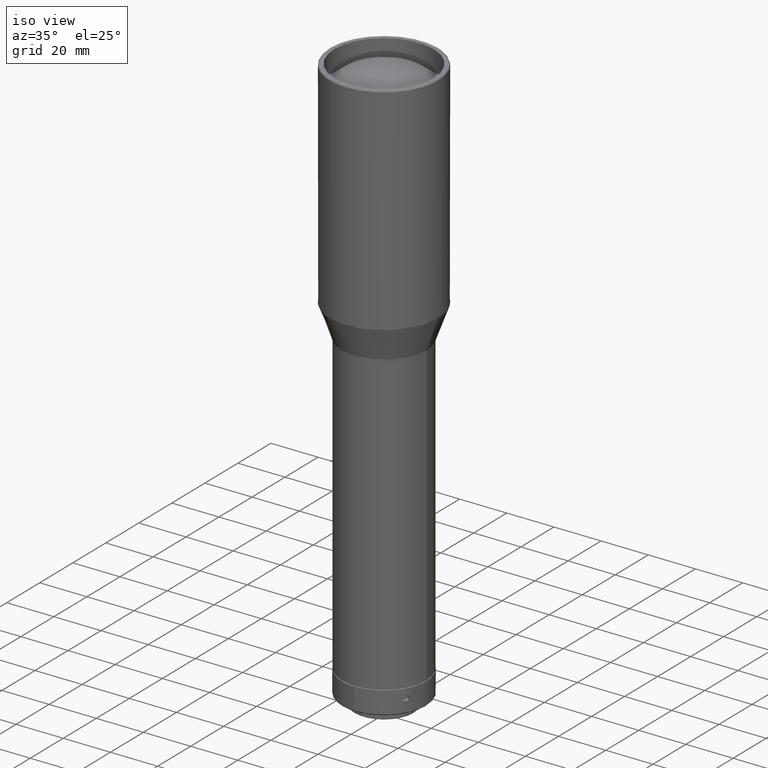
[diagram: clean part render]
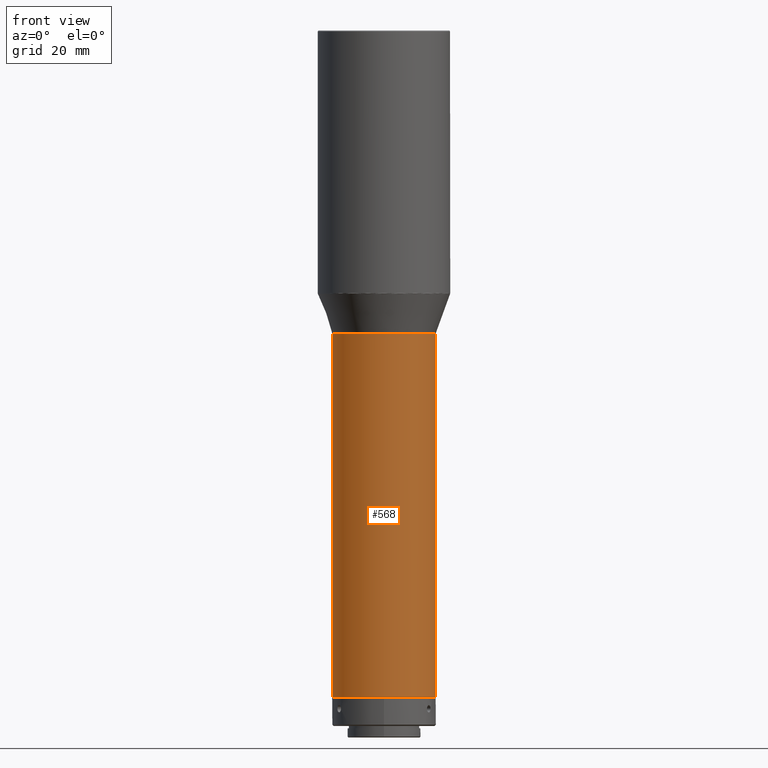
[diagram: tour spotlight — one face highlighted and labeled with its STEP entity id]
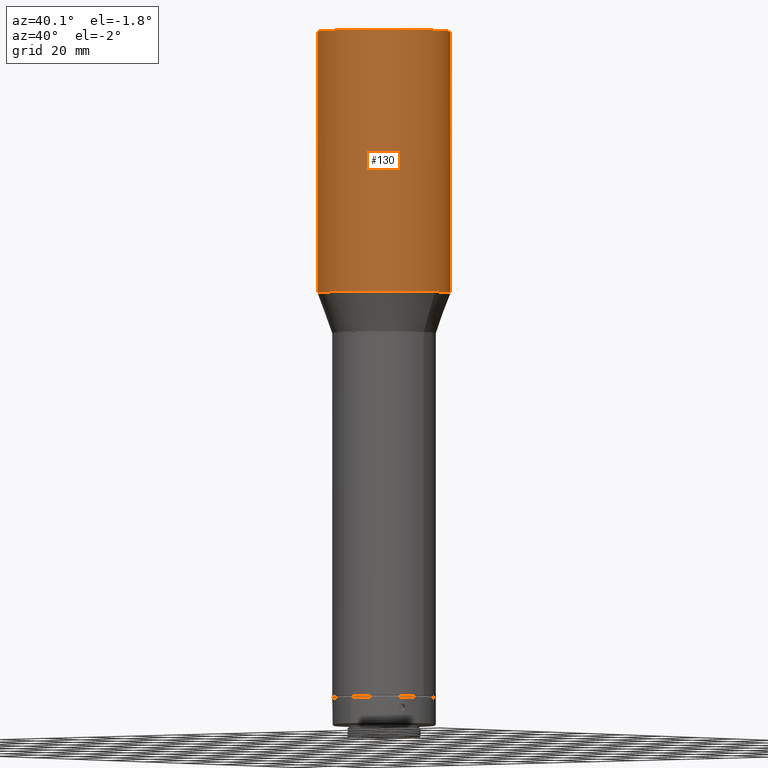
[diagram: tour spotlight — one face highlighted and labeled with its STEP entity id]
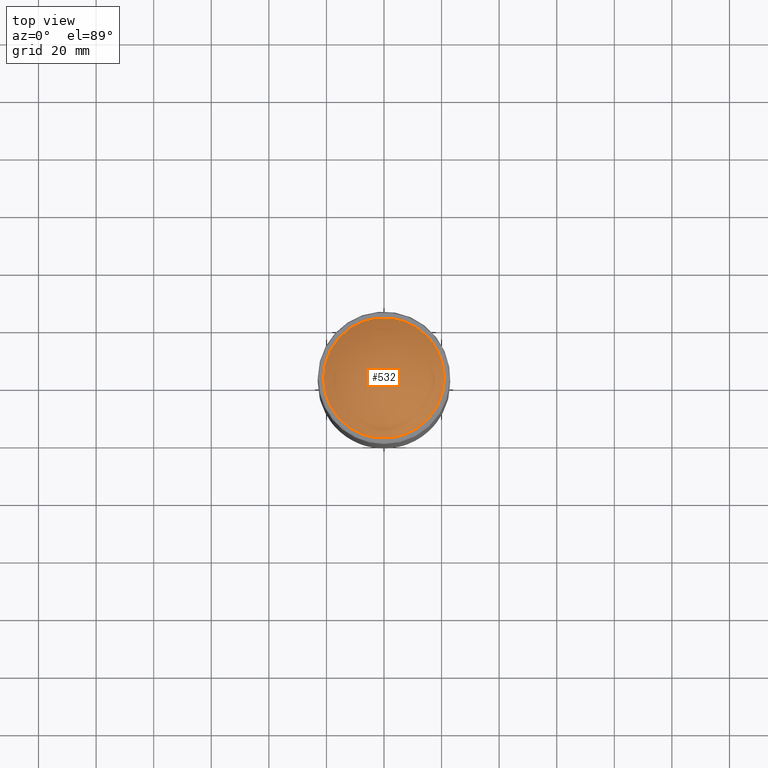
[diagram: tour spotlight — one face highlighted and labeled with its STEP entity id]
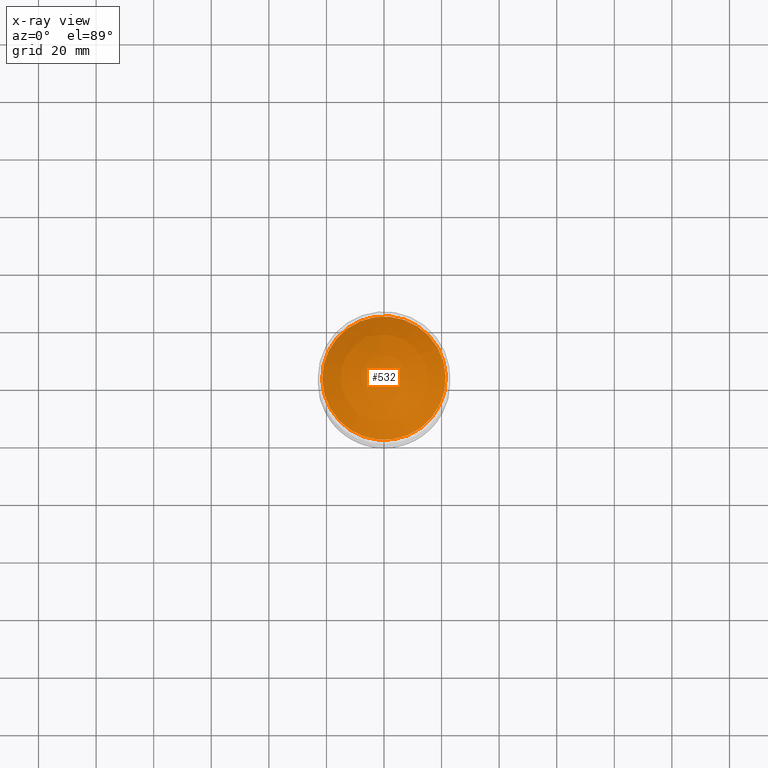
[diagram: x-ray of the same camera — body ghosted, this tour face saturated]
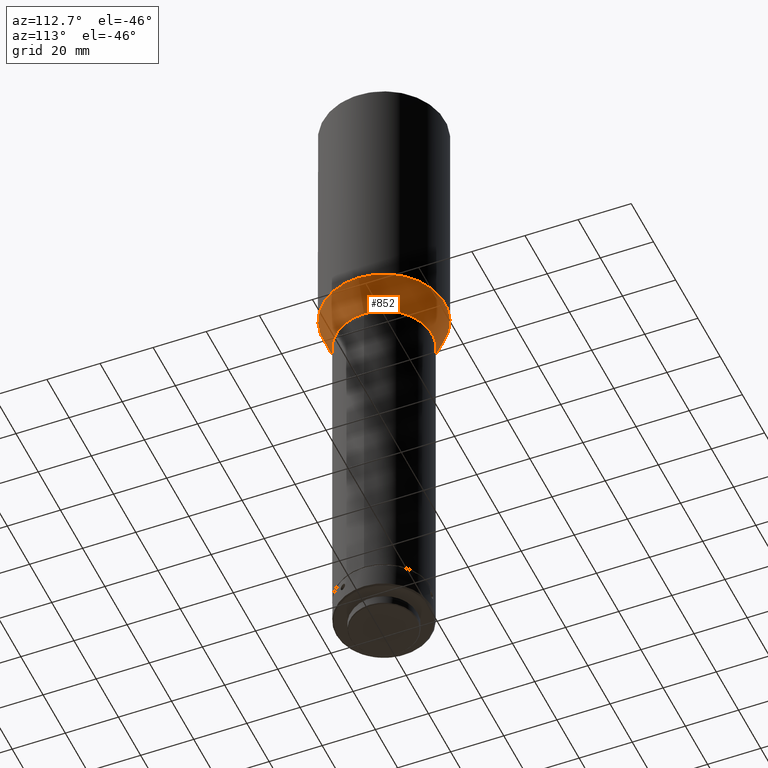
[diagram: tour spotlight — one face highlighted and labeled with its STEP entity id]
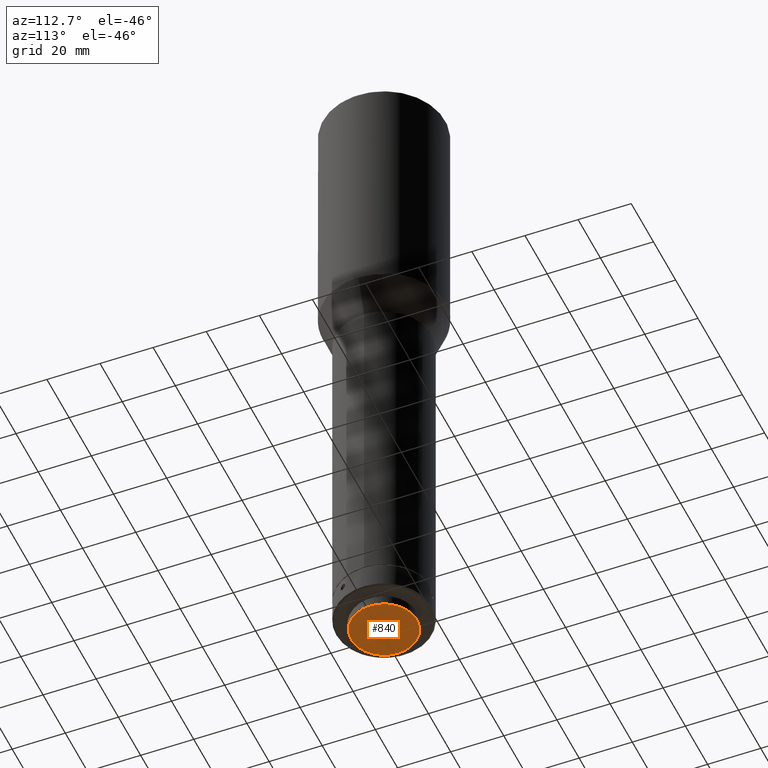
[diagram: tour spotlight — one face highlighted and labeled with its STEP entity id]
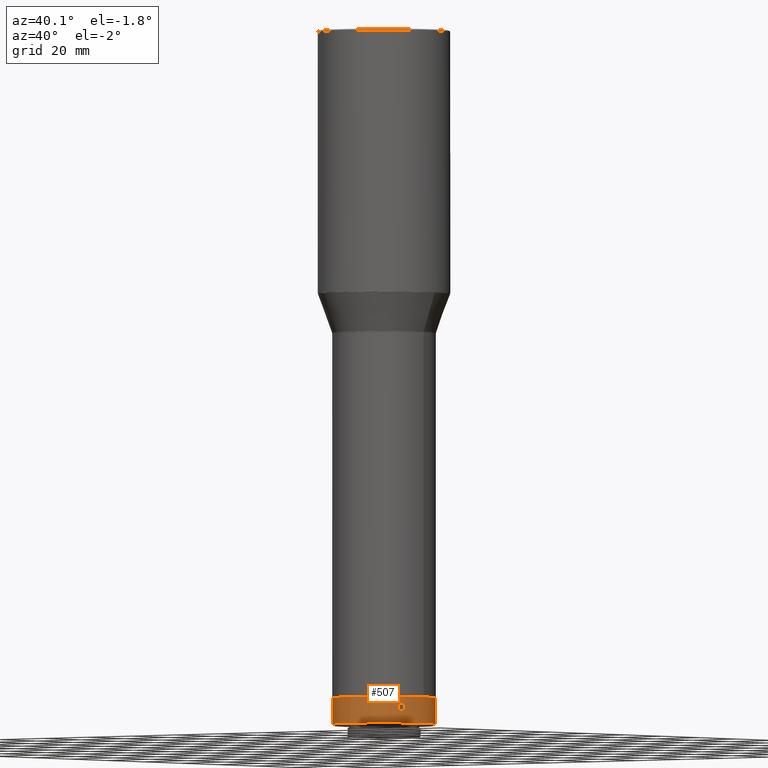
[diagram: tour spotlight — one face highlighted and labeled with its STEP entity id]
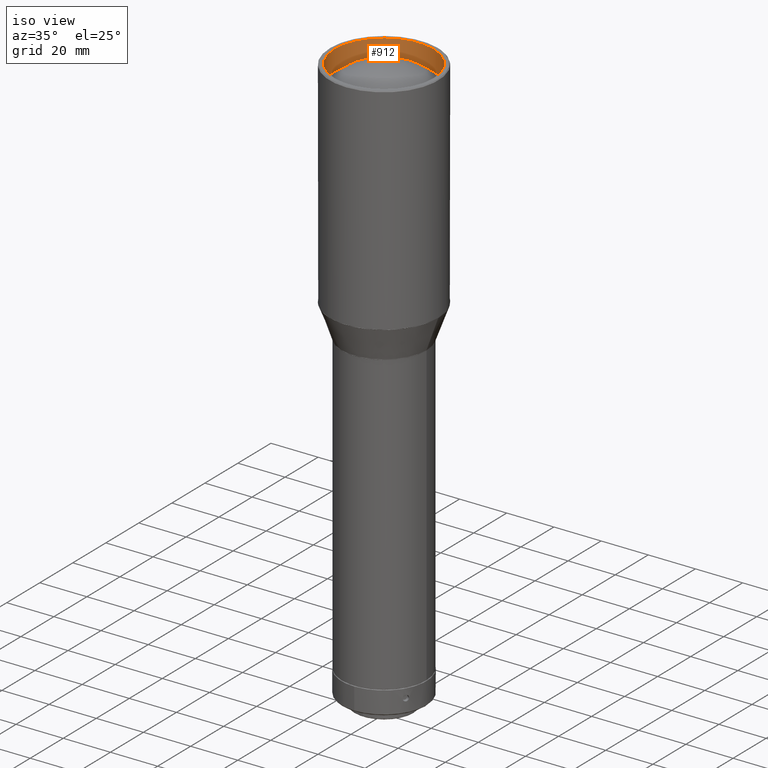
[diagram: tour spotlight — one face highlighted and labeled with its STEP entity id]
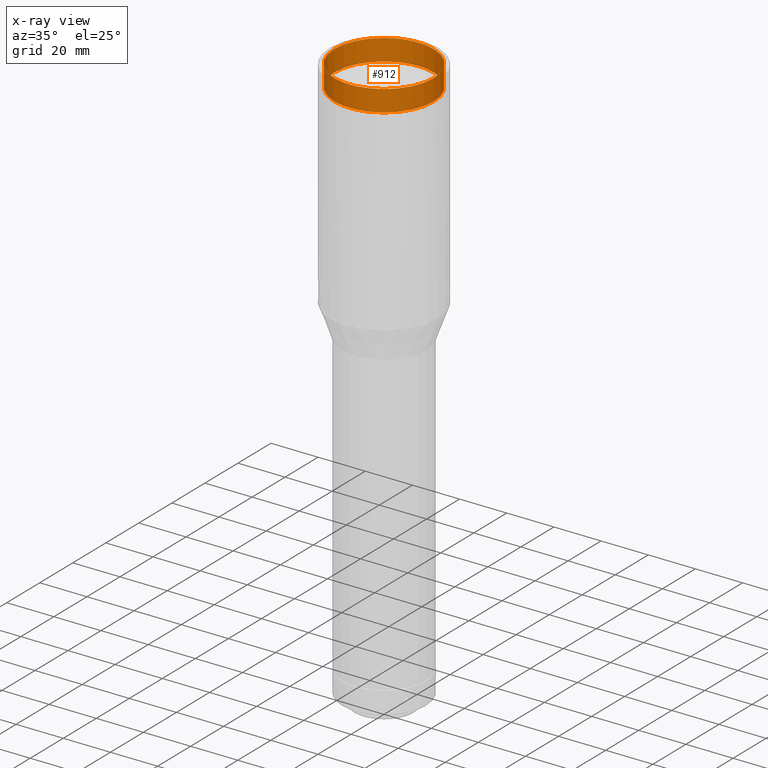
[diagram: x-ray of the same camera — body ghosted, this tour face saturated]
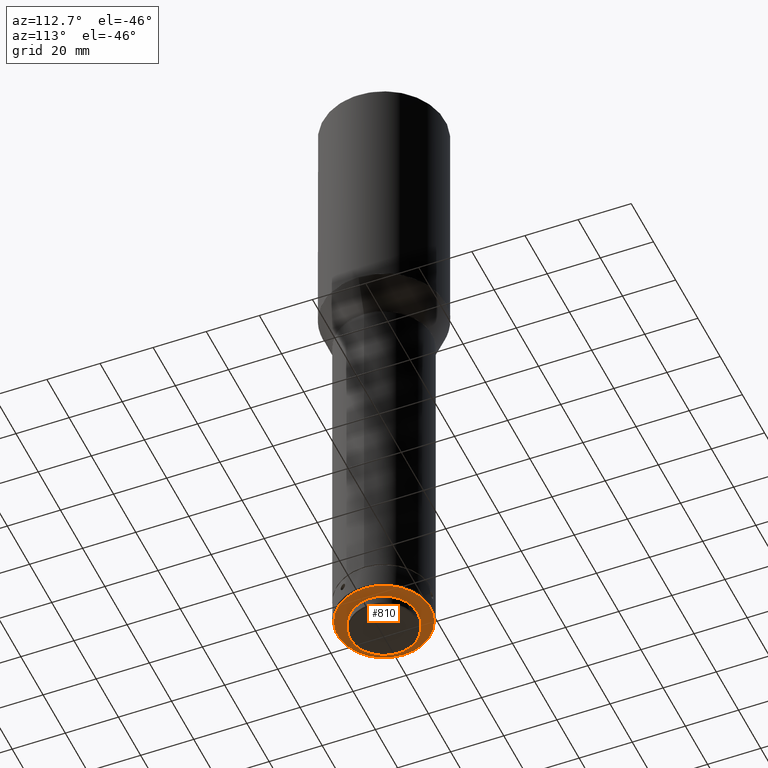
[diagram: tour spotlight — one face highlighted and labeled with its STEP entity id]
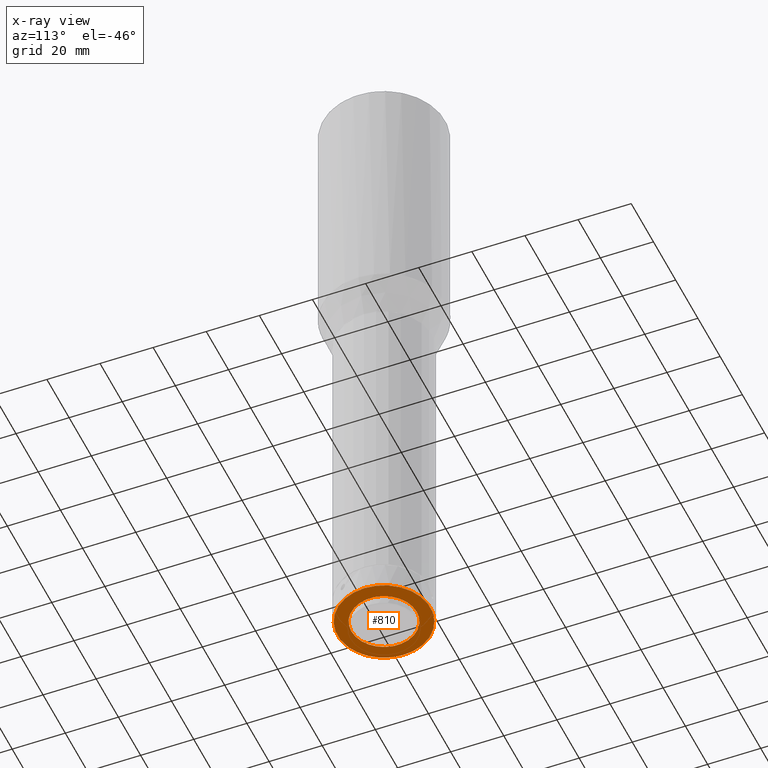
[diagram: x-ray of the same camera — body ghosted, this tour face saturated]
A machine part: a face-by-face anatomy tour. The part has 32 B-rep faces; the first image is the clean iso view, then the 8 largest visible faces are spotlighted one at a time (largest first), each with its STEP entity span.

Face 1 — front view, entity #568. In plain terms, the highlighted cylindrical surface (bore or boss wall) has radius 18 mm, axis along (0, 0, 1).
Definition (entity closure, byte-faithful):
#9 = ORIENTED_EDGE ( 'NONE', *, *, #653, .T. ) ;
#15 = DIRECTION ( 'NONE',  ( 1.000000000000000000, 0.000000000000000000, 0.000000000000000000 ) ) ;
#75 = FACE_OUTER_BOUND ( 'NONE', #895, .T. ) ;
#159 = EDGE_LOOP ( 'NONE', ( #594 ) ) ;
#163 = DIRECTION ( 'NONE',  ( 1.110223024625154815E-16, 4.163336342344342573E-17, 1.000000000000000000 ) ) ;
#169 = AXIS2_PLACEMENT_3D ( 'NONE', #275, #565, #712 ) ;
#175 = EDGE_CURVE ( 'NONE', #886, #886, #585, .T. ) ;
#188 = AXIS2_PLACEMENT_3D ( 'NONE', #365, #660, #15 ) ;
#234 = FACE_OUTER_BOUND ( 'NONE', #159, .T. ) ;
#275 = CARTESIAN_POINT ( 'NONE',  ( 2.511186674050088304E-15, -5.997198901138402715E-15, -526.2696380779818810 ) ) ;
#365 = CARTESIAN_POINT ( 'NONE',  ( 6.680770175516935677E-15, -4.433605088088330463E-15, -488.7133686709893254 ) ) ;
#369 = CYLINDRICAL_SURFACE ( 'NONE', #188, 17.99999999999999645 ) ;
#522 = AXIS2_PLACEMENT_3D ( 'NONE', #811, #163, #667 ) ;
#543 = CARTESIAN_POINT ( 'NONE',  ( 18.00000000000000000, -5.997198901138402715E-15, -526.2696380779818810 ) ) ;
#557 = VERTEX_POINT ( 'NONE', #843 ) ;
#565 = DIRECTION ( 'NONE',  ( -1.110223024625154815E-16, -4.163336342344342573E-17, -1.000000000000000000 ) ) ;
#568 = ADVANCED_FACE ( 'NONE', ( #75, #234 ), #369, .T. ) ;
#585 = CIRCLE ( 'NONE', #169, 17.99999999999999645 ) ;
#594 = ORIENTED_EDGE ( 'NONE', *, *, #175, .T. ) ;
#653 = EDGE_CURVE ( 'NONE', #557, #557, #929, .T. ) ;
#660 = DIRECTION ( 'NONE',  ( 1.110223024625154815E-16, 4.163336342344342573E-17, 1.000000000000000000 ) ) ;
#667 = DIRECTION ( 'NONE',  ( 1.000000000000000000, 0.000000000000000000, 0.000000000000000000 ) ) ;
#712 = DIRECTION ( 'NONE',  ( 1.000000000000000000, 0.000000000000000000, 0.000000000000000000 ) ) ;
#811 = CARTESIAN_POINT ( 'NONE',  ( -1.150163599727957096E-14, -1.125200740288704087E-14, -652.4859240000002956 ) ) ;
#843 = CARTESIAN_POINT ( 'NONE',  ( 17.99999999999998579, -1.125200740288704087E-14, -652.4859240000002956 ) ) ;
#886 = VERTEX_POINT ( 'NONE', #543 ) ;
#895 = EDGE_LOOP ( 'NONE', ( #9 ) ) ;
#929 = CIRCLE ( 'NONE', #522, 17.99999999999999645 ) ;

Face 2 — auxiliary view, entity #130. In plain terms, the highlighted cylindrical surface (bore or boss wall) has radius 23 mm, axis along (0, 0, 1).
Definition (entity closure, byte-faithful):
#24 = CARTESIAN_POINT ( 'NONE',  ( -22.99999999999999645, -5.410583101090723940E-15, -512.1795970192918048 ) ) ;
#42 = DIRECTION ( 'NONE',  ( 0.000000000000000000, -1.000000000000000000, 0.000000000000000000 ) ) ;
#46 = DIRECTION ( 'NONE',  ( 0.000000000000000000, 3.079024946026213031E-48, 1.000000000000000000 ) ) ;
#58 = DIRECTION ( 'NONE',  ( 0.000000000000000000, -1.000000000000000000, 0.000000000000000000 ) ) ;
#78 = AXIS2_PLACEMENT_3D ( 'NONE', #393, #411, #327 ) ;
#104 = EDGE_CURVE ( 'NONE', #756, #756, #509, .T. ) ;
#107 = AXIS2_PLACEMENT_3D ( 'NONE', #702, #46, #42 ) ;
#115 = VERTEX_POINT ( 'NONE', #24 ) ;
#126 = CYLINDRICAL_SURFACE ( 'NONE', #107, 23.00000000000005684 ) ;
#130 = ADVANCED_FACE ( 'NONE', ( #919, #405 ), #126, .T. ) ;
#151 = EDGE_CURVE ( 'NONE', #115, #115, #757, .T. ) ;
#273 = EDGE_LOOP ( 'NONE', ( #403 ) ) ;
#323 = CARTESIAN_POINT ( 'NONE',  ( 3.148184440162178166E-15, -23.00000000000006040, -421.2999999999999545 ) ) ;
#327 = DIRECTION ( 'NONE',  ( -1.000000000000000000, 0.000000000000000000, 0.000000000000000000 ) ) ;
#393 = CARTESIAN_POINT ( 'NONE',  ( 4.075495474177223682E-15, -5.410583101090723940E-15, -512.1795970192918048 ) ) ;
#403 = ORIENTED_EDGE ( 'NONE', *, *, #151, .F. ) ;
#405 = FACE_OUTER_BOUND ( 'NONE', #632, .T. ) ;
#411 = DIRECTION ( 'NONE',  ( -1.110223024625154815E-16, -4.163336342344342573E-17, -1.000000000000000000 ) ) ;
#415 = CARTESIAN_POINT ( 'NONE',  ( 3.148184440162178166E-15, -6.183622186097855047E-15, -421.2999999999999545 ) ) ;
#480 = DIRECTION ( 'NONE',  ( -0.000000000000000000, -3.079024946026213031E-48, -1.000000000000000000 ) ) ;
#509 = CIRCLE ( 'NONE', #611, 23.00000000000005684 ) ;
#611 = AXIS2_PLACEMENT_3D ( 'NONE', #415, #480, #58 ) ;
#632 = EDGE_LOOP ( 'NONE', ( #642 ) ) ;
#642 = ORIENTED_EDGE ( 'NONE', *, *, #104, .T. ) ;
#702 = CARTESIAN_POINT ( 'NONE',  ( 3.148184440162178166E-15, -6.183622186097855047E-15, -420.9999999999999432 ) ) ;
#756 = VERTEX_POINT ( 'NONE', #323 ) ;
#757 = CIRCLE ( 'NONE', #78, 23.00000000000000000 ) ;
#919 = FACE_OUTER_BOUND ( 'NONE', #273, .T. ) ;

Face 3 — top view, entity #532. An x-ray twin of the same camera follows (body ghosted, this face saturated) — the face is partly hidden behind the body. In plain terms, the highlighted spherical surface has radius 31.2095 mm.
Definition (entity closure, byte-faithful):
#28 = EDGE_LOOP ( 'NONE', ( #152 ) ) ;
#121 = CARTESIAN_POINT ( 'NONE',  ( 8.217209483082314136, -19.81591518845252153, -429.9999999999999432 ) ) ;
#152 = ORIENTED_EDGE ( 'NONE', *, *, #662, .F. ) ;
#199 = DIRECTION ( 'NONE',  ( -0.3830490080632378835, 0.9237280213470681067, 0.000000000000000000 ) ) ;
#305 = AXIS2_PLACEMENT_3D ( 'NONE', #306, #455, #601 ) ;
#306 = CARTESIAN_POINT ( 'NONE',  ( 0.000000000000000000, 5.204170427930421283E-15, -429.9999999999999432 ) ) ;
#392 = AXIS2_PLACEMENT_3D ( 'NONE', #860, #567, #199 ) ;
#455 = DIRECTION ( 'NONE',  ( -1.232595164407830946E-32, -1.318609258053555361E-16, -1.000000000000000000 ) ) ;
#487 = FACE_OUTER_BOUND ( 'NONE', #28, .T. ) ;
#532 = ADVANCED_FACE ( 'NONE', ( #487 ), #864, .T. ) ;
#567 = DIRECTION ( 'NONE',  ( 4.665676044949140993E-17, 1.934749774458438248E-17, 1.000000000000000000 ) ) ;
#601 = DIRECTION ( 'NONE',  ( 0.3830490080632378835, -0.9237280213470682178, 0.000000000000000000 ) ) ;
#662 = EDGE_CURVE ( 'NONE', #772, #772, #723, .T. ) ;
#723 = CIRCLE ( 'NONE', #305, 21.45211006975307910 ) ;
#772 = VERTEX_POINT ( 'NONE', #121 ) ;
#860 = CARTESIAN_POINT ( 'NONE',  ( 0.000000000000000000, 0.000000000000000000, -452.6680567275545854 ) ) ;
#864 = SPHERICAL_SURFACE ( 'NONE', #392, 31.20951493132240273 ) ;

Face 4 — auxiliary view, entity #852. In plain terms, the highlighted conical surface has half-angle 20 deg.
Definition (entity closure, byte-faithful):
#29 = DIRECTION ( 'NONE',  ( 1.000000000000000000, 0.000000000000000000, 0.000000000000000000 ) ) ;
#39 = VERTEX_POINT ( 'NONE', #697 ) ;
#54 = DIRECTION ( 'NONE',  ( 1.000000000000000000, 1.343299564627736160E-31, 0.000000000000000000 ) ) ;
#123 = AXIS2_PLACEMENT_3D ( 'NONE', #311, #679, #29 ) ;
#128 = EDGE_LOOP ( 'NONE', ( #534 ) ) ;
#205 = DIRECTION ( 'NONE',  ( 1.110223024625154815E-16, 4.163336342344342573E-17, 1.000000000000000000 ) ) ;
#222 = DIRECTION ( 'NONE',  ( 1.000000000000000000, 0.000000000000000000, 0.000000000000000000 ) ) ;
#311 = CARTESIAN_POINT ( 'NONE',  ( 3.469446951953614189E-15, -5.424822550015955498E-15, -512.5216171626175310 ) ) ;
#315 = FACE_OUTER_BOUND ( 'NONE', #128, .T. ) ;
#381 = FACE_BOUND ( 'NONE', #621, .T. ) ;
#395 = VERTEX_POINT ( 'NONE', #691 ) ;
#412 = CARTESIAN_POINT ( 'NONE',  ( 4.037523610376634068E-15, -5.424822550015953131E-15, -512.5216171626175310 ) ) ;
#425 = DIRECTION ( 'NONE',  ( -1.110223024625154815E-16, -4.163336342344342573E-17, -1.000000000000000000 ) ) ;
#444 = CIRCLE ( 'NONE', #511, 22.93969262078588756 ) ;
#493 = EDGE_CURVE ( 'NONE', #395, #395, #444, .T. ) ;
#511 = AXIS2_PLACEMENT_3D ( 'NONE', #412, #425, #54 ) ;
#524 = EDGE_CURVE ( 'NONE', #39, #39, #554, .T. ) ;
#534 = ORIENTED_EDGE ( 'NONE', *, *, #493, .T. ) ;
#554 = CIRCLE ( 'NONE', #686, 18.06030737921407336 ) ;
#621 = EDGE_LOOP ( 'NONE', ( #750 ) ) ;
#623 = CONICAL_SURFACE ( 'NONE', #123, 22.93969262078589111, 0.3490658503988667283 ) ;
#679 = DIRECTION ( 'NONE',  ( 0.000000000000000000, -0.000000000000000000, 1.000000000000000000 ) ) ;
#686 = AXIS2_PLACEMENT_3D ( 'NONE', #920, #205, #222 ) ;
#691 = CARTESIAN_POINT ( 'NONE',  ( 22.93969262078589111, -5.424822550015950764E-15, -512.5216171626175310 ) ) ;
#697 = CARTESIAN_POINT ( 'NONE',  ( 18.06030737921407692, -5.982959452213201134E-15, -525.9276179346562685 ) ) ;
#750 = ORIENTED_EDGE ( 'NONE', *, *, #524, .T. ) ;
#852 = ADVANCED_FACE ( 'NONE', ( #381, #315 ), #623, .T. ) ;
#920 = CARTESIAN_POINT ( 'NONE',  ( 2.549158537850642024E-15, -5.982959452213201134E-15, -525.9276179346562685 ) ) ;

Face 5 — auxiliary view, entity #840. In plain terms, the highlighted planar face has unit normal (0, 0, 1).
Definition (entity closure, byte-faithful):
#12 = PLANE ( 'NONE',  #503 ) ;
#94 = DIRECTION ( 'NONE',  ( 0.000000000000000000, -1.000000000000000000, 4.251322214894750808E-18 ) ) ;
#242 = CARTESIAN_POINT ( 'NONE',  ( 2.391060413214945280E-14, 10.74999999999992362, -666.5859239999999772 ) ) ;
#301 = DIRECTION ( 'NONE',  ( 0.000000000000000000, 0.000000000000000000, 1.000000000000000000 ) ) ;
#376 = CIRCLE ( 'NONE', #671, 12.40000000000005898 ) ;
#426 = EDGE_LOOP ( 'NONE', ( #817 ) ) ;
#503 = AXIS2_PLACEMENT_3D ( 'NONE', #242, #530, #94 ) ;
#520 = CARTESIAN_POINT ( 'NONE',  ( 2.428612866367529932E-14, -7.773451256676347467E-14, -666.5859240000000909 ) ) ;
#530 = DIRECTION ( 'NONE',  ( 1.848892746611745598E-32, 4.251322214894750808E-18, 1.000000000000000000 ) ) ;
#600 = EDGE_CURVE ( 'NONE', #899, #899, #376, .T. ) ;
#671 = AXIS2_PLACEMENT_3D ( 'NONE', #520, #301, #807 ) ;
#807 = DIRECTION ( 'NONE',  ( 1.000000000000000000, 0.000000000000000000, 0.000000000000000000 ) ) ;
#817 = ORIENTED_EDGE ( 'NONE', *, *, #600, .F. ) ;
#837 = CARTESIAN_POINT ( 'NONE',  ( 12.40000000000008207, -7.773451256676347467E-14, -666.5859240000000909 ) ) ;
#840 = ADVANCED_FACE ( 'NONE', ( #849 ), #12, .F. ) ;
#849 = FACE_OUTER_BOUND ( 'NONE', #426, .T. ) ;
#899 = VERTEX_POINT ( 'NONE', #837 ) ;

Face 6 — auxiliary view, entity #507. In plain terms, the highlighted cylindrical surface (bore or boss wall) has radius 18 mm, axis along (0, 0, 1).
Definition (entity closure, byte-faithful):
#7 = CARTESIAN_POINT ( 'NONE',  ( 0.1622121008447097446, 18.00000780388014832, -657.8360363759026086 ) ) ;
#41 = CARTESIAN_POINT ( 'NONE',  ( 15.50735797605616462, -9.140483702072820904, -657.8360363759026086 ) ) ;
#45 = CARTESIAN_POINT ( 'NONE',  ( -15.95789852174027423, -8.328213433529214171, -657.5870206175247858 ) ) ;
#49 = EDGE_LOOP ( 'NONE', ( #309 ) ) ;
#51 = CARTESIAN_POINT ( 'NONE',  ( -15.01397453000987348, -9.928974310108440449, -655.9554994048876324 ) ) ;
#52 = DIRECTION ( 'NONE',  ( 1.848892746611746419E-32, 4.251322214894751578E-18, 1.000000000000000000 ) ) ;
#56 = CARTESIAN_POINT ( 'NONE',  ( 16.10583377797237148, -8.037790164337547338, -657.2159316652778216 ) ) ;
#59 = ORIENTED_EDGE ( 'NONE', *, *, #300, .T. ) ;
#60 = CARTESIAN_POINT ( 'NONE',  ( 14.92582393315537281, -10.06080413865846346, -656.4207247607348563 ) ) ;
#63 = CARTESIAN_POINT ( 'NONE',  ( -1.250000303081689301, 17.95654474675715306, -656.4207272969531459 ) ) ;
#66 = CARTESIAN_POINT ( 'NONE',  ( 1.091987193791607025, 17.96695623533817354, -655.9559176262725941 ) ) ;
#70 = CARTESIAN_POINT ( 'NONE',  ( -0.1622122895001043286, 18.00000780388918642, -655.3358116239671745 ) ) ;
#73 = CARTESIAN_POINT ( 'NONE',  ( -16.10583412538204229, -8.037789467238170005, -655.9559176262730489 ) ) ;
#87 = CARTESIAN_POINT ( 'NONE',  ( 2.450734900788547759E-14, -18.00000000000004263, -662.0859239999998636 ) ) ;
#88 = DIRECTION ( 'NONE',  ( 1.848892746611746419E-32, 4.251322214894751578E-18, 1.000000000000000000 ) ) ;
#108 = VERTEX_POINT ( 'NONE', #174 ) ;
#110 = CARTESIAN_POINT ( 'NONE',  ( 16.17582406642458892, -7.895740356171804031, -656.4207272969528049 ) ) ;
#117 = CARTESIAN_POINT ( 'NONE',  ( -16.17582393315544920, -7.895740629197154803, -656.5859240000003183 ) ) ;
#124 = CARTESIAN_POINT ( 'NONE',  ( 14.94412286735163597, -10.03380008369040155, -656.2586249706281478 ) ) ;
#127 = FACE_BOUND ( 'NONE', #569, .T. ) ;
#131 = CARTESIAN_POINT ( 'NONE',  ( 15.89389229175803031, -8.450273022655002464, -655.4932483457098442 ) ) ;
#136 = CARTESIAN_POINT ( 'NONE',  ( 15.06470539628270622, -9.852325387835577430, -657.3538441707626134 ) ) ;
#137 = CARTESIAN_POINT ( 'NONE',  ( 1.217386422865469608, 17.95889563292096724, -656.9135490172557184 ) ) ;
#143 = CARTESIAN_POINT ( 'NONE',  ( 0.7665048592951844153, 17.98405222760572997, -657.5870206175246722 ) ) ;
#155 = CARTESIAN_POINT ( 'NONE',  ( -16.16158720264605009, -7.925089998557311333, -656.2586249706281478 ) ) ;
#174 = CARTESIAN_POINT ( 'NONE',  ( -16.17582393315544920, -7.895740629197154803, -656.5859240000002046 ) ) ;
#177 = CARTESIAN_POINT ( 'NONE',  ( 1.250000000000012434, 17.95654476785542286, -656.5859239999998636 ) ) ;
#182 = CARTESIAN_POINT ( 'NONE',  ( -15.42341458922615871, -9.281228838266013526, -655.3681391631303086 ) ) ;
#191 = CARTESIAN_POINT ( 'NONE',  ( -16.06471677035725065, -8.120254879791596991, -657.3538441707626134 ) ) ;
#196 = CARTESIAN_POINT ( 'NONE',  ( -16.10573089449702877, -8.037996915324889358, -657.2163499346065691 ) ) ;
#202 = CARTESIAN_POINT ( 'NONE',  ( 16.06431448413912833, -8.121029507381892998, -657.3545561668028085 ) ) ;
#210 = CARTESIAN_POINT ( 'NONE',  ( 15.19139366244525036, -9.655838794076705867, -657.5870206175247858 ) ) ;
#211 = CARTESIAN_POINT ( 'NONE',  ( -15.75062872817963644, -8.714374564440115378, -655.3689086990358419 ) ) ;
#215 = CARTESIAN_POINT ( 'NONE',  ( -1.091986416381241165, 17.96695628302220982, -657.2159316652778216 ) ) ;
#216 = B_SPLINE_CURVE_WITH_KNOTS ( 'NONE', 3,
 ( #799, #513, #155, #73, #364, #856, #419, #211, #918, #269, #182, #397, #633, #342, #51, #404, #853, #911, #637, #325, #558, #844, #494, #410, #707, #470, #280, #693, #45, #191, #196, #921, #484, #117 ),
 .UNSPECIFIED., .T., .F.,
 ( 4, 2, 2, 2, 2, 2, 2, 2, 2, 2, 2, 2, 2, 2, 2, 2, 4 ),
 ( 0.000000000000000000, 0.0004885519476059280164, 0.0009771038952118560328, 0.001465655842817784049, 0.001954207790423712066, 0.002442759738029640082, 0.002931311685635568098, 0.003419863633241496115, 0.003908415580847424131, 0.004396967528453352148, 0.004885519476059280164, 0.005374071423665208180, 0.005862623371271136197, 0.006351175318877064213, 0.006839727266482992230, 0.007328279214088920246, 0.007816831161694848262 ),
 .UNSPECIFIED. ) ;
#224 = CARTESIAN_POINT ( 'NONE',  ( -0.9991393837938343792, 17.97261919133761054, -657.3545561668026949 ) ) ;
#231 = EDGE_CURVE ( 'NONE', #247, #247, #294, .T. ) ;
#247 = VERTEX_POINT ( 'NONE', #384 ) ;
#258 = CARTESIAN_POINT ( 'NONE',  ( 15.89407479287065250, -8.449912178066030677, -657.6782201720308194 ) ) ;
#264 = CARTESIAN_POINT ( 'NONE',  ( 15.26509761156014200, -9.539377401184921723, -657.6786000156603222 ) ) ;
#269 = CARTESIAN_POINT ( 'NONE',  ( -15.50735788173635044, -9.140483865457529333, -655.3358116239674018 ) ) ;
#271 = FACE_OUTER_BOUND ( 'NONE', #49, .T. ) ;
#274 = CARTESIAN_POINT ( 'NONE',  ( 15.42218411498791397, -9.283257321960586950, -655.3689086990358419 ) ) ;
#280 = CARTESIAN_POINT ( 'NONE',  ( -15.74948706598766890, -8.716454752419860341, -657.8037089096969794 ) ) ;
#283 = FACE_BOUND ( 'NONE', #778, .T. ) ;
#284 = EDGE_CURVE ( 'NONE', #108, #108, #216, .T. ) ;
#288 = CARTESIAN_POINT ( 'NONE',  ( 1.250000000000027311, 17.95654476785542286, -656.7511232392652119 ) ) ;
#294 = B_SPLINE_CURVE_WITH_KNOTS ( 'NONE', 3,
 ( #177, #465, #576, #66, #584, #424, #726, #644, #789, #70, #717, #429, #721, #639, #859, #358, #63, #501, #659, #215, #224, #924, #436, #795, #655, #7, #728, #931, #143, #572, #355, #137, #288, #350 ),
 .UNSPECIFIED., .T., .F.,
 ( 4, 2, 2, 2, 2, 2, 2, 2, 2, 2, 2, 2, 2, 2, 2, 2, 4 ),
 ( 0.000000000000000000, 0.0004885519476059272575, 0.0009771038952118545149, 0.001465655842817781881, 0.001954207790423709030, 0.002442759738029636179, 0.002931311685635563762, 0.003419863633241490911, 0.003908415580847418060, 0.004396967528453345209, 0.004885519476059272358, 0.005374071423665199507, 0.005862623371271127523, 0.006351175318877054672, 0.006839727266482981821, 0.007328279214088908970, 0.007816831161694836119 ),
 .UNSPECIFIED. ) ;
#300 = EDGE_CURVE ( 'NONE', #535, #535, #593, .T. ) ;
#309 = ORIENTED_EDGE ( 'NONE', *, *, #827, .F. ) ;
#325 = CARTESIAN_POINT ( 'NONE',  ( -15.01384736159112521, -9.929166118684857878, -657.2159316652778216 ) ) ;
#337 = CARTESIAN_POINT ( 'NONE',  ( 15.95885680708785515, -8.326356316898488430, -657.5850940424838882 ) ) ;
#340 = DIRECTION ( 'NONE',  ( 1.848892746611746419E-32, 4.251322214894751578E-18, 1.000000000000000000 ) ) ;
#342 = CARTESIAN_POINT ( 'NONE',  ( -15.06470492706435138, -9.852326105843951964, -655.8180048980900665 ) ) ;
#348 = CARTESIAN_POINT ( 'NONE',  ( 16.16155327807073760, -7.925159788840877795, -656.2583007959090082 ) ) ;
#350 = CARTESIAN_POINT ( 'NONE',  ( 1.250000000000012434, 17.95654476785542286, -656.5859239999998636 ) ) ;
#351 = DIRECTION ( 'NONE',  ( 0.000000000000000000, -1.000000000000000000, 0.000000000000000000 ) ) ;
#355 = CARTESIAN_POINT ( 'NONE',  ( 1.091755923036216602, 17.96697055881264760, -657.2163499346063418 ) ) ;
#358 = CARTESIAN_POINT ( 'NONE',  ( -1.217386932848444347, 17.95889559784522760, -656.2583007959092356 ) ) ;
#364 = CARTESIAN_POINT ( 'NONE',  ( -16.06431486166287215, -8.121028761097853987, -655.8172928769150758 ) ) ;
#375 = VERTEX_POINT ( 'NONE', #528 ) ;
#384 = CARTESIAN_POINT ( 'NONE',  ( 1.250000000000012434, 17.95654476785542641, -656.5859239999999772 ) ) ;
#387 = CARTESIAN_POINT ( 'NONE',  ( 2.450734900788547759E-14, -7.771665701346090625E-14, -662.0859239999998636 ) ) ;
#397 = CARTESIAN_POINT ( 'NONE',  ( -15.26509725241248461, -9.539377978348683840, -655.4932483457098442 ) ) ;
#404 = CARTESIAN_POINT ( 'NONE',  ( -14.94416634522241338, -10.03373580900454520, -656.2583007959090082 ) ) ;
#410 = CARTESIAN_POINT ( 'NONE',  ( -15.42218430790378392, -9.283256999105402585, -657.8029393772538924 ) ) ;
#413 = CARTESIAN_POINT ( 'NONE',  ( 16.17582379988433061, -7.895740902226751956, -656.7511252896944143 ) ) ;
#417 = CARTESIAN_POINT ( 'NONE',  ( 14.92582393315539768, -10.06080413865844392, -656.7511232392655529 ) ) ;
#419 = CARTESIAN_POINT ( 'NONE',  ( -15.89407510756401365, -8.449911588734691392, -655.4936281845228905 ) ) ;
#424 = CARTESIAN_POINT ( 'NONE',  ( 0.7685930773333821131, 17.98395353626929705, -655.5867545139830099 ) ) ;
#429 = CARTESIAN_POINT ( 'NONE',  ( -0.6287950393458059395, 17.98965100100347669, -655.4932483457100716 ) ) ;
#436 = CARTESIAN_POINT ( 'NONE',  ( -0.6291987904826328304, 17.98962862930875417, -657.6782201720307057 ) ) ;
#449 = VERTEX_POINT ( 'NONE', #87 ) ;
#465 = CARTESIAN_POINT ( 'NONE',  ( 1.249999999999997113, 17.95654476785542286, -656.4207247607344016 ) ) ;
#470 = CARTESIAN_POINT ( 'NONE',  ( -15.66957007690069403, -8.859524101807513929, -657.8360363759026086 ) ) ;
#478 = CARTESIAN_POINT ( 'NONE',  ( 16.06471715756163832, -8.120254114432443160, -655.8180048980900665 ) ) ;
#484 = CARTESIAN_POINT ( 'NONE',  ( -16.17582393315544564, -7.895740629197169902, -656.7511232392655529 ) ) ;
#489 = CARTESIAN_POINT ( 'NONE',  ( 15.06517464280624097, -9.851590384043120707, -655.8172928769150758 ) ) ;
#494 = CARTESIAN_POINT ( 'NONE',  ( -15.26487600238792908, -9.539716451242908235, -657.6782201720308194 ) ) ;
#498 = ORIENTED_EDGE ( 'NONE', *, *, #284, .T. ) ;
#501 = CARTESIAN_POINT ( 'NONE',  ( -1.249999696914037450, 17.95654478895399819, -656.7511252896945280 ) ) ;
#507 = ADVANCED_FACE ( 'NONE', ( #635, #127, #283, #271, #641 ), #581, .T. ) ;
#513 = CARTESIAN_POINT ( 'NONE',  ( -16.17582393315544920, -7.895740629197137039, -656.4207247607348563 ) ) ;
#528 = CARTESIAN_POINT ( 'NONE',  ( -17.99999999999988631, -7.867674557124651655E-14, -652.8859240000000455 ) ) ;
#531 = DIRECTION ( 'NONE',  ( 0.000000000000000000, -1.000000000000000000, 0.000000000000000000 ) ) ;
#535 = VERTEX_POINT ( 'NONE', #550 ) ;
#545 = CARTESIAN_POINT ( 'NONE',  ( 15.01397497146081150, -9.928973643487946532, -657.2163499346065691 ) ) ;
#550 = CARTESIAN_POINT ( 'NONE',  ( 14.92582393315538347, -10.06080413865845458, -656.5859240000002046 ) ) ;
#551 = CARTESIAN_POINT ( 'NONE',  ( 15.19026408422147512, -9.657597898278512005, -655.5867545139833510 ) ) ;
#558 = CARTESIAN_POINT ( 'NONE',  ( -15.06517510034523966, -9.851589683955904064, -657.3545561668028085 ) ) ;
#563 = CARTESIAN_POINT ( 'NONE',  ( 15.50648066428973770, -9.141971952207573082, -655.3360369727663510 ) ) ;
#564 = DIRECTION ( 'NONE',  ( -1.000000000000000000, -5.551115123125814750E-17, 0.000000000000000000 ) ) ;
#569 = EDGE_LOOP ( 'NONE', ( #59 ) ) ;
#570 = CARTESIAN_POINT ( 'NONE',  ( 15.74948724688816881, -8.716454428236477980, -655.3681391631303086 ) ) ;
#572 = CARTESIAN_POINT ( 'NONE',  ( 1.000011374074655013, 17.97258026762698790, -657.3538441707622724 ) ) ;
#576 = CARTESIAN_POINT ( 'NONE',  ( 1.217464335294301980, 17.95889008224754235, -656.2586249706279204 ) ) ;
#581 = CYLINDRICAL_SURFACE ( 'NONE', #855, 17.99999999999996803 ) ;
#584 = CARTESIAN_POINT ( 'NONE',  ( 0.9991402188564738607, 17.97261914514078995, -655.8172928769150758 ) ) ;
#593 = B_SPLINE_CURVE_WITH_KNOTS ( 'NONE', 3,
 ( #773, #60, #124, #643, #489, #551, #622, #274, #563, #716, #570, #131, #785, #478, #839, #348, #110, #413, #848, #56, #202, #337, #258, #779, #767, #41, #710, #264, #210, #136, #545, #699, #417, #902 ),
 .UNSPECIFIED., .T., .F.,
 ( 4, 2, 2, 2, 2, 2, 2, 2, 2, 2, 2, 2, 2, 2, 2, 2, 4 ),
 ( 0.000000000000000000, 0.0004885519476059280164, 0.0009771038952118560328, 0.001465655842817784049, 0.001954207790423712066, 0.002442759738029640082, 0.002931311685635568098, 0.003419863633241496115, 0.003908415580847424131, 0.004396967528453352148, 0.004885519476059280164, 0.005374071423665208180, 0.005862623371271136197, 0.006351175318877064213, 0.006839727266482992230, 0.007328279214088920246, 0.007816831161694848262 ),
 .UNSPECIFIED. ) ;
#622 = CARTESIAN_POINT ( 'NONE',  ( 15.26487564935877650, -9.539717018441068674, -655.4936281845228905 ) ) ;
#633 = CARTESIAN_POINT ( 'NONE',  ( -15.19139325230747772, -9.655839439901535926, -655.5848279321261316 ) ) ;
#635 = FACE_OUTER_BOUND ( 'NONE', #784, .T. ) ;
#637 = CARTESIAN_POINT ( 'NONE',  ( -14.94412316329292523, -10.03379964370067867, -656.9132248894954955 ) ) ;
#639 = CARTESIAN_POINT ( 'NONE',  ( -1.000012230497488996, 17.97258022027619262, -655.8180048980900665 ) ) ;
#640 = AXIS2_PLACEMENT_3D ( 'NONE', #387, #88, #531 ) ;
#641 = FACE_BOUND ( 'NONE', #812, .T. ) ;
#643 = CARTESIAN_POINT ( 'NONE',  ( 15.01384693159025829, -9.929166768100184726, -655.9559176262730489 ) ) ;
#644 = CARTESIAN_POINT ( 'NONE',  ( 0.3284446131914389166, 17.99763188640052292, -655.3689086990357282 ) ) ;
#655 = CARTESIAN_POINT ( 'NONE',  ( -0.1639394304984783113, 17.99999215467980562, -657.8358110273640023 ) ) ;
#659 = CARTESIAN_POINT ( 'NONE',  ( -1.217463806281589456, 17.95889011854537287, -656.9132248894954955 ) ) ;
#693 = CARTESIAN_POINT ( 'NONE',  ( -15.89389197149331601, -8.450273622267836515, -657.6786000156603222 ) ) ;
#699 = CARTESIAN_POINT ( 'NONE',  ( 14.94416663059029737, -10.03373538488440175, -656.9135490172559457 ) ) ;
#700 = CIRCLE ( 'NONE', #640, 17.99999999999996803 ) ;
#703 = CARTESIAN_POINT ( 'NONE',  ( 2.450734900788547759E-14, -7.767626945241940288E-14, -652.5859240000000909 ) ) ;
#707 = CARTESIAN_POINT ( 'NONE',  ( -15.50648075862405939, -9.141971788833734180, -657.8358110273640023 ) ) ;
#708 = CARTESIAN_POINT ( 'NONE',  ( 2.450734900788547759E-14, -7.767754484908386304E-14, -652.8859240000000455 ) ) ;
#710 = CARTESIAN_POINT ( 'NONE',  ( 15.42341477952701823, -9.281228519509920005, -657.8037089096969794 ) ) ;
#716 = CARTESIAN_POINT ( 'NONE',  ( 15.66957017123617213, -8.859523938431850709, -655.3358116239674018 ) ) ;
#717 = CARTESIAN_POINT ( 'NONE',  ( -0.3260726576622967054, 17.99768326650229255, -655.3681391631306496 ) ) ;
#718 = CIRCLE ( 'NONE', #730, 17.99999999999991118 ) ;
#721 = CARTESIAN_POINT ( 'NONE',  ( -0.7665056236649177013, 17.98405219532844157, -655.5848279321263590 ) ) ;
#726 = CARTESIAN_POINT ( 'NONE',  ( 0.6291994582049730278, 17.98962860717558243, -655.4936281845228905 ) ) ;
#728 = CARTESIAN_POINT ( 'NONE',  ( 0.3260722864608144866, 17.99768327192958495, -657.8037089096972068 ) ) ;
#730 = AXIS2_PLACEMENT_3D ( 'NONE', #708, #52, #564 ) ;
#767 = CARTESIAN_POINT ( 'NONE',  ( 15.67042018912270507, -8.858020365846256183, -657.8358110273640023 ) ) ;
#773 = CARTESIAN_POINT ( 'NONE',  ( 14.92582393315538347, -10.06080413865845280, -656.5859240000003183 ) ) ;
#778 = EDGE_LOOP ( 'NONE', ( #498 ) ) ;
#779 = CARTESIAN_POINT ( 'NONE',  ( 15.75062854503685550, -8.714374892937804873, -657.8029393772538924 ) ) ;
#784 = EDGE_LOOP ( 'NONE', ( #825 ) ) ;
#785 = CARTESIAN_POINT ( 'NONE',  ( 15.95789887597216428, -8.328212755427106373, -655.5848279321261316 ) ) ;
#789 = CARTESIAN_POINT ( 'NONE',  ( 0.1639396191513494416, 17.99999215467076752, -655.3360369727665784 ) ) ;
#795 = CARTESIAN_POINT ( 'NONE',  ( -0.3284442371329683308, 17.99763189204302094, -657.8029393772535514 ) ) ;
#799 = CARTESIAN_POINT ( 'NONE',  ( -16.17582393315544920, -7.895740629197154803, -656.5859240000003183 ) ) ;
#803 = EDGE_CURVE ( 'NONE', #449, #449, #700, .T. ) ;
#812 = EDGE_LOOP ( 'NONE', ( #900 ) ) ;
#825 = ORIENTED_EDGE ( 'NONE', *, *, #803, .T. ) ;
#827 = EDGE_CURVE ( 'NONE', #375, #375, #718, .T. ) ;
#839 = CARTESIAN_POINT ( 'NONE',  ( 16.10573125108190951, -8.037996199706944012, -655.9554994048876324 ) ) ;
#844 = CARTESIAN_POINT ( 'NONE',  ( -15.19026449493897779, -9.657597251847104047, -657.5850940424838882 ) ) ;
#848 = CARTESIAN_POINT ( 'NONE',  ( 16.16158696957449337, -7.925090474844888710, -656.9132248894954955 ) ) ;
#853 = CARTESIAN_POINT ( 'NONE',  ( -14.92582376334298644, -10.06080439058555775, -656.4207272969528049 ) ) ;
#855 = AXIS2_PLACEMENT_3D ( 'NONE', #703, #340, #351 ) ;
#856 = CARTESIAN_POINT ( 'NONE',  ( -15.95885716155505385, -8.326355637990959124, -655.5867545139833510 ) ) ;
#859 = CARTESIAN_POINT ( 'NONE',  ( -1.091756721072211445, 17.96697050981518018, -655.9554994048876324 ) ) ;
#900 = ORIENTED_EDGE ( 'NONE', *, *, #231, .T. ) ;
#902 = CARTESIAN_POINT ( 'NONE',  ( 14.92582393315538347, -10.06080413865845280, -656.5859240000003183 ) ) ;
#911 = CARTESIAN_POINT ( 'NONE',  ( -14.92582410297032425, -10.06080388672743808, -656.7511252896944143 ) ) ;
#918 = CARTESIAN_POINT ( 'NONE',  ( -15.67042028344137172, -8.858020202463382731, -655.3360369727663510 ) ) ;
#921 = CARTESIAN_POINT ( 'NONE',  ( -16.16155305345579407, -7.925160248036752897, -656.9135490172559457 ) ) ;
#924 = CARTESIAN_POINT ( 'NONE',  ( -0.7685923121487923115, 17.98395356874540596, -657.5850940424838882 ) ) ;
#931 = CARTESIAN_POINT ( 'NONE',  ( 0.6287943599333296607, 17.98965102345256284, -657.6786000156604359 ) ) ;

Face 7 — iso view, entity #912. An x-ray twin of the same camera follows (body ghosted, this face saturated) — the face is partly hidden behind the body. In plain terms, the highlighted cylindrical surface (bore or boss wall) has radius 21 mm, axis along (-0, -0, 1).
Definition (entity closure, byte-faithful):
#3 = ORIENTED_EDGE ( 'NONE', *, *, #14, .F. ) ;
#14 = EDGE_CURVE ( 'NONE', #257, #257, #129, .T. ) ;
#16 = CIRCLE ( 'NONE', #61, 21.00000000000000000 ) ;
#61 = AXIS2_PLACEMENT_3D ( 'NONE', #891, #111, #829 ) ;
#111 = DIRECTION ( 'NONE',  ( 0.000000000000000000, 0.000000000000000000, 1.000000000000000000 ) ) ;
#112 = DIRECTION ( 'NONE',  ( 0.000000000000000000, 0.000000000000000000, 1.000000000000000000 ) ) ;
#129 = CIRCLE ( 'NONE', #536, 21.00000000000000000 ) ;
#139 = EDGE_LOOP ( 'NONE', ( #434 ) ) ;
#257 = VERTEX_POINT ( 'NONE', #906 ) ;
#260 = CARTESIAN_POINT ( 'NONE',  ( 3.469446951953614189E-15, -6.183622186097855047E-15, -429.9999999999999432 ) ) ;
#262 = DIRECTION ( 'NONE',  ( 1.000000000000000000, 0.000000000000000000, 0.000000000000000000 ) ) ;
#335 = CARTESIAN_POINT ( 'NONE',  ( 21.00000000000000355, -6.183622186097855047E-15, -420.9999999999999432 ) ) ;
#380 = FACE_OUTER_BOUND ( 'NONE', #457, .T. ) ;
#434 = ORIENTED_EDGE ( 'NONE', *, *, #682, .T. ) ;
#452 = CYLINDRICAL_SURFACE ( 'NONE', #605, 21.00000000000000000 ) ;
#457 = EDGE_LOOP ( 'NONE', ( #3 ) ) ;
#536 = AXIS2_PLACEMENT_3D ( 'NONE', #260, #112, #892 ) ;
#540 = FACE_OUTER_BOUND ( 'NONE', #139, .T. ) ;
#561 = VERTEX_POINT ( 'NONE', #335 ) ;
#604 = DIRECTION ( 'NONE',  ( -0.000000000000000000, -0.000000000000000000, 1.000000000000000000 ) ) ;
#605 = AXIS2_PLACEMENT_3D ( 'NONE', #744, #604, #262 ) ;
#682 = EDGE_CURVE ( 'NONE', #561, #561, #16, .T. ) ;
#744 = CARTESIAN_POINT ( 'NONE',  ( 3.469446951953614189E-15, -6.183622186097855047E-15, -429.9999999999999432 ) ) ;
#829 = DIRECTION ( 'NONE',  ( 1.000000000000000000, 0.000000000000000000, 0.000000000000000000 ) ) ;
#891 = CARTESIAN_POINT ( 'NONE',  ( 3.469446951953614189E-15, -6.183622186097855047E-15, -420.9999999999999432 ) ) ;
#892 = DIRECTION ( 'NONE',  ( 1.000000000000000000, 0.000000000000000000, 0.000000000000000000 ) ) ;
#906 = CARTESIAN_POINT ( 'NONE',  ( 21.00000000000000355, -6.183622186097855047E-15, -429.9999999999999432 ) ) ;
#912 = ADVANCED_FACE ( 'NONE', ( #380, #540 ), #452, .F. ) ;

Face 8 — auxiliary view, entity #810. An x-ray twin of the same camera follows (body ghosted, this face saturated) — the face is partly hidden behind the body. In plain terms, the highlighted planar face has unit normal (0, 0, 1).
Definition (entity closure, byte-faithful):
#22 = CARTESIAN_POINT ( 'NONE',  ( 2.428612866367529932E-14, -7.771665701346090625E-14, -662.5859239999999772 ) ) ;
#48 = CARTESIAN_POINT ( 'NONE',  ( 17.49999999999998224, -7.771665701346090625E-14, -662.5859239999999772 ) ) ;
#65 = CIRCLE ( 'NONE', #743, 12.29999999999997762 ) ;
#77 = EDGE_CURVE ( 'NONE', #268, #268, #65, .T. ) ;
#99 = DIRECTION ( 'NONE',  ( 1.000000000000000000, 0.000000000000000000, 0.000000000000000000 ) ) ;
#141 = CIRCLE ( 'NONE', #361, 17.49999999999995737 ) ;
#184 = FACE_BOUND ( 'NONE', #731, .T. ) ;
#254 = DIRECTION ( 'NONE',  ( 0.000000000000000000, -1.000000000000000000, 4.251322214894750808E-18 ) ) ;
#263 = ORIENTED_EDGE ( 'NONE', *, *, #787, .F. ) ;
#265 = CARTESIAN_POINT ( 'NONE',  ( 2.450734900788547759E-14, -7.771878267456835247E-14, -662.5859239999999772 ) ) ;
#268 = VERTEX_POINT ( 'NONE', #826 ) ;
#317 = DIRECTION ( 'NONE',  ( 1.848892746611745598E-32, 4.251322214894750808E-18, 1.000000000000000000 ) ) ;
#324 = ORIENTED_EDGE ( 'NONE', *, *, #77, .F. ) ;
#361 = AXIS2_PLACEMENT_3D ( 'NONE', #22, #741, #99 ) ;
#399 = DIRECTION ( 'NONE',  ( -1.848892746611746419E-32, -4.251322214894751578E-18, -1.000000000000000000 ) ) ;
#409 = EDGE_LOOP ( 'NONE', ( #263 ) ) ;
#529 = AXIS2_PLACEMENT_3D ( 'NONE', #882, #317, #254 ) ;
#555 = DIRECTION ( 'NONE',  ( 0.000000000000000000, -1.000000000000000000, 0.000000000000000000 ) ) ;
#681 = PLANE ( 'NONE',  #529 ) ;
#704 = VERTEX_POINT ( 'NONE', #48 ) ;
#731 = EDGE_LOOP ( 'NONE', ( #324 ) ) ;
#741 = DIRECTION ( 'NONE',  ( 0.000000000000000000, 0.000000000000000000, 1.000000000000000000 ) ) ;
#743 = AXIS2_PLACEMENT_3D ( 'NONE', #265, #399, #555 ) ;
#787 = EDGE_CURVE ( 'NONE', #704, #704, #141, .T. ) ;
#810 = ADVANCED_FACE ( 'NONE', ( #184, #896 ), #681, .F. ) ;
#826 = CARTESIAN_POINT ( 'NONE',  ( 2.450734900788547759E-14, -12.30000000000005578, -662.5859239999999772 ) ) ;
#882 = CARTESIAN_POINT ( 'NONE',  ( 2.382456184774100254E-14, 12.29999999999992077, -662.5859239999999772 ) ) ;
#896 = FACE_OUTER_BOUND ( 'NONE', #409, .T. ) ;